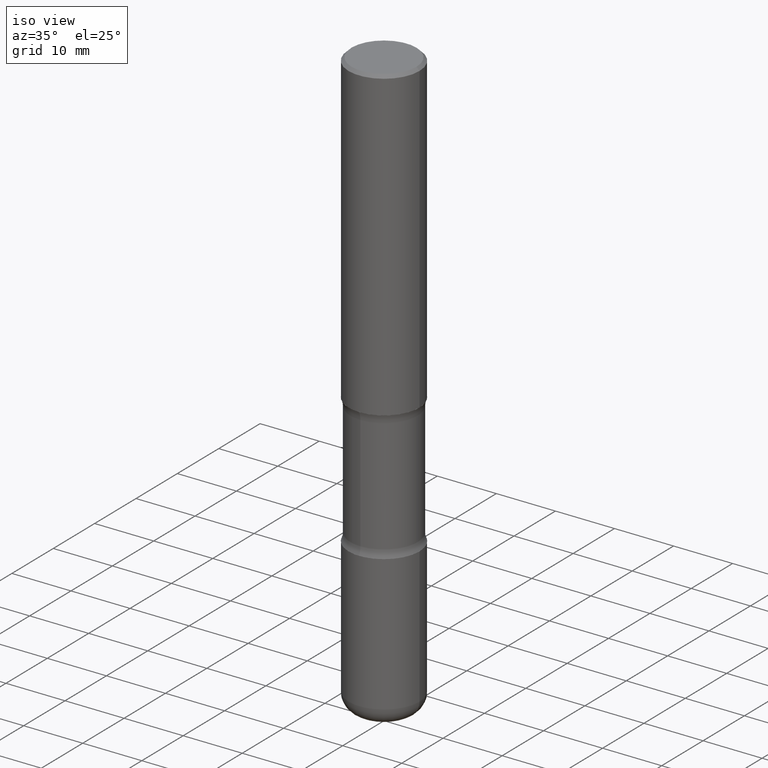
[diagram: clean part render]
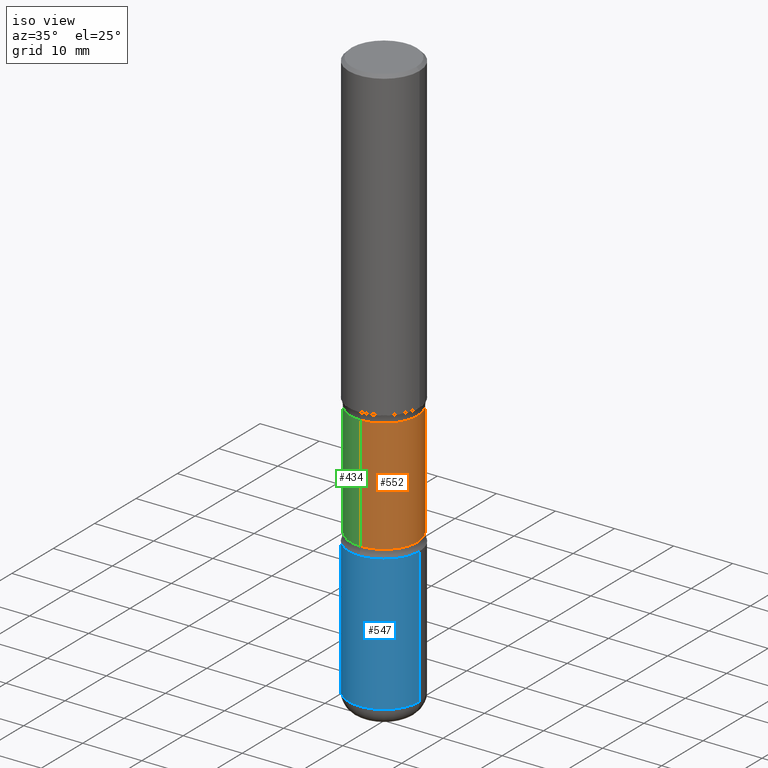
[diagram: same view with three faces highlighted in distinct colors, each labeled with its STEP entity id]
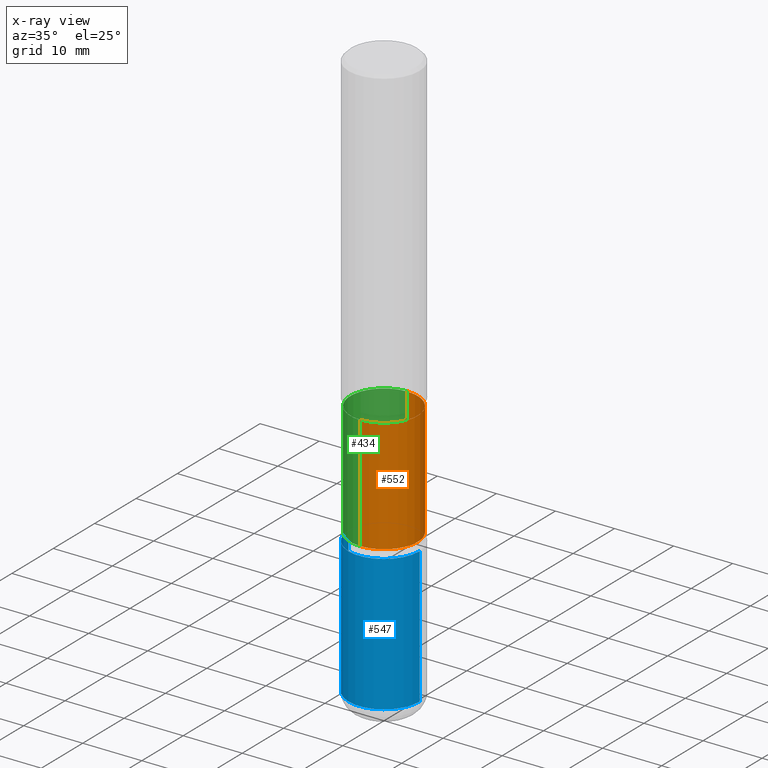
[diagram: x-ray of the same camera — body ghosted, the three highlighted faces saturated]
A machine part, iso view with three faces highlighted in distinct colors.
The next image is the same camera in x-ray (body ghosted, the three faces saturated) — at least one of them is partly hidden behind the body in this view.
Their STEP definitions:

[orange] entity #552 — the highlighted cylindrical surface (partial cylindrical patch) has radius 5.6998 mm, axis along (0, -0, -1).
#17 = CARTESIAN_POINT ( 'NONE',  ( -1.579972688886713168E-15, -0.2244000000000099804, -2.860383398826404466 ) ) ;
#23 = CARTESIAN_POINT ( 'NONE',  ( 5.070539682259229331E-29, -7.426630284172150130E-15, -2.100216601173595432 ) ) ;
#25 = DIRECTION ( 'NONE',  ( 2.525985086076564115E-29, -3.376177443336566513E-15, -1.000000000000000000 ) ) ;
#33 = AXIS2_PLACEMENT_3D ( 'NONE', #23, #25, #530 ) ;
#47 = EDGE_LOOP ( 'NONE', ( #471, #487, #245, #556 ) ) ;
#77 = LINE ( 'NONE', #415, #305 ) ;
#82 = VERTEX_POINT ( 'NONE', #219 ) ;
#112 = LINE ( 'NONE', #420, #117 ) ;
#117 = VECTOR ( 'NONE', #196, 39.37007874015748143 ) ;
#127 = CIRCLE ( 'NONE', #33, 0.2243999999999999606 ) ;
#173 = DIRECTION ( 'NONE',  ( 2.525985086076564115E-29, -3.376177443336566513E-15, -1.000000000000000000 ) ) ;
#196 = DIRECTION ( 'NONE',  ( 2.525985086076564115E-29, -3.376177443336566513E-15, -1.000000000000000000 ) ) ;
#205 = AXIS2_PLACEMENT_3D ( 'NONE', #545, #410, #230 ) ;
#219 = CARTESIAN_POINT ( 'NONE',  ( -1.579972688886734072E-15, -0.2244000000000073713, -2.100216601173594544 ) ) ;
#230 = DIRECTION ( 'NONE',  ( 6.982962677686265922E-15, 1.000000000000000000, -2.434802133390609421E-15 ) ) ;
#245 = ORIENTED_EDGE ( 'NONE', *, *, #265, .F. ) ;
#265 = EDGE_CURVE ( 'NONE', #287, #386, #491, .T. ) ;
#281 = EDGE_CURVE ( 'NONE', #377, #82, #127, .T. ) ;
#287 = VERTEX_POINT ( 'NONE', #451 ) ;
#305 = VECTOR ( 'NONE', #560, 39.37007874015748143 ) ;
#329 = AXIS2_PLACEMENT_3D ( 'NONE', #348, #173, #440 ) ;
#343 = FACE_OUTER_BOUND ( 'NONE', #47, .T. ) ;
#348 = CARTESIAN_POINT ( 'NONE',  ( 9.710227154047748282E-29, -1.362793696358492956E-14, -3.937000000000000277 ) ) ;
#377 = VERTEX_POINT ( 'NONE', #488 ) ;
#386 = VERTEX_POINT ( 'NONE', #17 ) ;
#410 = DIRECTION ( 'NONE',  ( 2.525985086076564115E-29, -3.376177443336566513E-15, -1.000000000000000000 ) ) ;
#415 = CARTESIAN_POINT ( 'NONE',  ( 1.566976824872894642E-15, 0.2243999999999863049, -3.937000000000000721 ) ) ;
#420 = CARTESIAN_POINT ( 'NONE',  ( -1.539495750699834052E-15, -0.2244000000000135608, -3.936999999999999389 ) ) ;
#440 = DIRECTION ( 'NONE',  ( 6.982962677686265922E-15, 1.000000000000000000, -2.434802133390609815E-15 ) ) ;
#451 = CARTESIAN_POINT ( 'NONE',  ( 1.566976824872867821E-15, 0.2243999999999899686, -2.860383398826405799 ) ) ;
#463 = EDGE_CURVE ( 'NONE', #82, #386, #112, .T. ) ;
#471 = ORIENTED_EDGE ( 'NONE', *, *, #281, .T. ) ;
#487 = ORIENTED_EDGE ( 'NONE', *, *, #463, .T. ) ;
#488 = CARTESIAN_POINT ( 'NONE',  ( 1.566976824872848494E-15, 0.2243999999999925499, -2.100216601173596320 ) ) ;
#491 = CIRCLE ( 'NONE', #205, 0.2243999999999999606 ) ;
#522 = CYLINDRICAL_SURFACE ( 'NONE', #329, 0.2243999999999999329 ) ;
#524 = EDGE_CURVE ( 'NONE', #377, #287, #77, .T. ) ;
#530 = DIRECTION ( 'NONE',  ( 6.982962677686265922E-15, 1.000000000000000000, -3.652203200085913934E-15 ) ) ;
#545 = CARTESIAN_POINT ( 'NONE',  ( 6.990709676060807691E-29, -9.993088279580958225E-15, -2.860383398826405354 ) ) ;
#552 = ADVANCED_FACE ( 'NONE', ( #343 ), #522, .T. ) ;
#556 = ORIENTED_EDGE ( 'NONE', *, *, #524, .F. ) ;
#560 = DIRECTION ( 'NONE',  ( 2.525985086076564115E-29, -3.376177443336566513E-15, -1.000000000000000000 ) ) ;

[blue] entity #547 — the highlighted cylindrical surface (partial cylindrical patch) has radius 5.9995 mm, axis along (-0, 0, 1).
#18 = ORIENTED_EDGE ( 'NONE', *, *, #515, .F. ) ;
#31 = DIRECTION ( 'NONE',  ( 1.000000000000000000, -6.982962677686266711E-15, 4.876176775795936353E-29 ) ) ;
#32 = VERTEX_POINT ( 'NONE', #269 ) ;
#46 = DIRECTION ( 'NONE',  ( -2.445468806185136877E-29, 3.491481338843145188E-15, 1.000000000000000000 ) ) ;
#68 = EDGE_CURVE ( 'NONE', #464, #303, #129, .T. ) ;
#70 = CARTESIAN_POINT ( 'NONE',  ( 0.000000000000000000, 0.000000000000000000, 0.000000000000000000 ) ) ;
#92 = EDGE_CURVE ( 'NONE', #528, #464, #344, .T. ) ;
#101 = ORIENTED_EDGE ( 'NONE', *, *, #223, .F. ) ;
#108 = CIRCLE ( 'NONE', #461, 0.2362000000000001321 ) ;
#110 = CARTESIAN_POINT ( 'NONE',  ( 7.124628819939777829E-29, -1.017208173258562247E-14, -2.913400000000000212 ) ) ;
#129 = LINE ( 'NONE', #178, #393 ) ;
#178 = CARTESIAN_POINT ( 'NONE',  ( 0.2362000000000001598, -1.649375784469497314E-15, 1.151752954443000929E-29 ) ) ;
#199 = CARTESIAN_POINT ( 'NONE',  ( 0.2362000000000002153, -1.498299386937758423E-14, -3.818899999999998851 ) ) ;
#223 = EDGE_CURVE ( 'NONE', #528, #32, #254, .T. ) ;
#238 = DIRECTION ( 'NONE',  ( 1.000000000000000000, -6.982962677686269077E-15, 0.000000000000000000 ) ) ;
#239 = AXIS2_PLACEMENT_3D ( 'NONE', #397, #301, #429 ) ;
#254 = LINE ( 'NONE', #436, #501 ) ;
#269 = CARTESIAN_POINT ( 'NONE',  ( -0.2362000000000001321, -1.007454796688149554E-14, -2.913400000000000212 ) ) ;
#279 = FACE_OUTER_BOUND ( 'NONE', #517, .T. ) ;
#301 = DIRECTION ( 'NONE',  ( -2.445468806185136597E-29, 3.491481338843145583E-15, 1.000000000000000000 ) ) ;
#303 = VERTEX_POINT ( 'NONE', #313 ) ;
#313 = CARTESIAN_POINT ( 'NONE',  ( 0.2362000000000001321, -1.182145751705511899E-14, -2.913400000000000212 ) ) ;
#324 = ORIENTED_EDGE ( 'NONE', *, *, #92, .T. ) ;
#330 = CARTESIAN_POINT ( 'NONE',  ( -0.2362000000000002153, -1.165531614304272658E-14, -3.818899999999998851 ) ) ;
#344 = CIRCLE ( 'NONE', #239, 0.2362000000000002153 ) ;
#352 = DIRECTION ( 'NONE',  ( -2.445468806185136877E-29, 3.491481338843145188E-15, 1.000000000000000000 ) ) ;
#393 = VECTOR ( 'NONE', #352, 39.37007874015748143 ) ;
#396 = AXIS2_PLACEMENT_3D ( 'NONE', #70, #417, #31 ) ;
#397 = CARTESIAN_POINT ( 'NONE',  ( 9.339000823940415305E-29, -1.333361808490808613E-14, -3.818899999999998851 ) ) ;
#417 = DIRECTION ( 'NONE',  ( -2.445468806185136597E-29, 3.491481338843145583E-15, 1.000000000000000000 ) ) ;
#429 = DIRECTION ( 'NONE',  ( 1.000000000000000000, -6.982962677686266711E-15, 0.000000000000000000 ) ) ;
#436 = CARTESIAN_POINT ( 'NONE',  ( -0.2362000000000001598, 1.678301941865357775E-15, -1.161852468318209598E-29 ) ) ;
#461 = AXIS2_PLACEMENT_3D ( 'NONE', #110, #473, #238 ) ;
#464 = VERTEX_POINT ( 'NONE', #199 ) ;
#465 = CYLINDRICAL_SURFACE ( 'NONE', #396, 0.2362000000000001598 ) ;
#473 = DIRECTION ( 'NONE',  ( -2.445468806185136597E-29, 3.491481338843145583E-15, 1.000000000000000000 ) ) ;
#501 = VECTOR ( 'NONE', #46, 39.37007874015748143 ) ;
#511 = ORIENTED_EDGE ( 'NONE', *, *, #68, .T. ) ;
#515 = EDGE_CURVE ( 'NONE', #32, #303, #108, .T. ) ;
#517 = EDGE_LOOP ( 'NONE', ( #101, #324, #511, #18 ) ) ;
#528 = VERTEX_POINT ( 'NONE', #330 ) ;
#547 = ADVANCED_FACE ( 'NONE', ( #279 ), #465, .T. ) ;

[green] entity #434 — the highlighted cylindrical surface (partial cylindrical patch) has radius 5.6998 mm, axis along (0, -0, -1).
#17 = CARTESIAN_POINT ( 'NONE',  ( -1.579972688886713168E-15, -0.2244000000000099804, -2.860383398826404466 ) ) ;
#24 = AXIS2_PLACEMENT_3D ( 'NONE', #186, #270, #404 ) ;
#30 = CYLINDRICAL_SURFACE ( 'NONE', #539, 0.2243999999999999329 ) ;
#39 = AXIS2_PLACEMENT_3D ( 'NONE', #139, #318, #359 ) ;
#75 = FACE_OUTER_BOUND ( 'NONE', #475, .T. ) ;
#77 = LINE ( 'NONE', #415, #305 ) ;
#82 = VERTEX_POINT ( 'NONE', #219 ) ;
#112 = LINE ( 'NONE', #420, #117 ) ;
#117 = VECTOR ( 'NONE', #196, 39.37007874015748143 ) ;
#139 = CARTESIAN_POINT ( 'NONE',  ( 5.070539682259229331E-29, -7.426630284172150130E-15, -2.100216601173595432 ) ) ;
#186 = CARTESIAN_POINT ( 'NONE',  ( 6.990709676060807691E-29, -9.993088279580958225E-15, -2.860383398826405354 ) ) ;
#196 = DIRECTION ( 'NONE',  ( 2.525985086076564115E-29, -3.376177443336566513E-15, -1.000000000000000000 ) ) ;
#219 = CARTESIAN_POINT ( 'NONE',  ( -1.579972688886734072E-15, -0.2244000000000073713, -2.100216601173594544 ) ) ;
#252 = EDGE_CURVE ( 'NONE', #386, #287, #418, .T. ) ;
#270 = DIRECTION ( 'NONE',  ( 2.525985086076564115E-29, -3.376177443336566513E-15, -1.000000000000000000 ) ) ;
#287 = VERTEX_POINT ( 'NONE', #451 ) ;
#292 = ORIENTED_EDGE ( 'NONE', *, *, #524, .T. ) ;
#294 = ORIENTED_EDGE ( 'NONE', *, *, #252, .F. ) ;
#305 = VECTOR ( 'NONE', #560, 39.37007874015748143 ) ;
#318 = DIRECTION ( 'NONE',  ( 2.525985086076564115E-29, -3.376177443336566513E-15, -1.000000000000000000 ) ) ;
#331 = DIRECTION ( 'NONE',  ( 6.982962677686265922E-15, 1.000000000000000000, -2.434802133390609815E-15 ) ) ;
#358 = EDGE_CURVE ( 'NONE', #82, #377, #526, .T. ) ;
#359 = DIRECTION ( 'NONE',  ( 6.982962677686265922E-15, 1.000000000000000000, -3.652203200085913934E-15 ) ) ;
#366 = ORIENTED_EDGE ( 'NONE', *, *, #463, .F. ) ;
#377 = VERTEX_POINT ( 'NONE', #488 ) ;
#386 = VERTEX_POINT ( 'NONE', #17 ) ;
#404 = DIRECTION ( 'NONE',  ( 6.982962677686265922E-15, 1.000000000000000000, -2.434802133390609421E-15 ) ) ;
#415 = CARTESIAN_POINT ( 'NONE',  ( 1.566976824872894642E-15, 0.2243999999999863049, -3.937000000000000721 ) ) ;
#418 = CIRCLE ( 'NONE', #24, 0.2243999999999999606 ) ;
#420 = CARTESIAN_POINT ( 'NONE',  ( -1.539495750699834052E-15, -0.2244000000000135608, -3.936999999999999389 ) ) ;
#434 = ADVANCED_FACE ( 'NONE', ( #75 ), #30, .T. ) ;
#437 = ORIENTED_EDGE ( 'NONE', *, *, #358, .T. ) ;
#451 = CARTESIAN_POINT ( 'NONE',  ( 1.566976824872867821E-15, 0.2243999999999899686, -2.860383398826405799 ) ) ;
#463 = EDGE_CURVE ( 'NONE', #82, #386, #112, .T. ) ;
#467 = DIRECTION ( 'NONE',  ( 2.525985086076564115E-29, -3.376177443336566513E-15, -1.000000000000000000 ) ) ;
#475 = EDGE_LOOP ( 'NONE', ( #366, #437, #292, #294 ) ) ;
#488 = CARTESIAN_POINT ( 'NONE',  ( 1.566976824872848494E-15, 0.2243999999999925499, -2.100216601173596320 ) ) ;
#504 = CARTESIAN_POINT ( 'NONE',  ( 9.710227154047748282E-29, -1.362793696358492956E-14, -3.937000000000000277 ) ) ;
#524 = EDGE_CURVE ( 'NONE', #377, #287, #77, .T. ) ;
#526 = CIRCLE ( 'NONE', #39, 0.2243999999999999606 ) ;
#539 = AXIS2_PLACEMENT_3D ( 'NONE', #504, #467, #331 ) ;
#560 = DIRECTION ( 'NONE',  ( 2.525985086076564115E-29, -3.376177443336566513E-15, -1.000000000000000000 ) ) ;